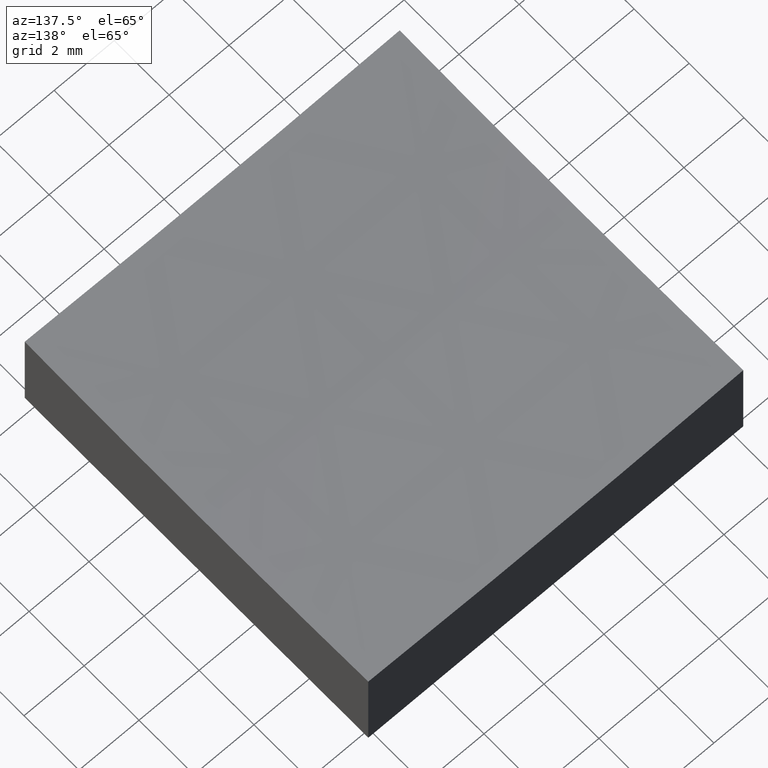
[diagram: clean part render]
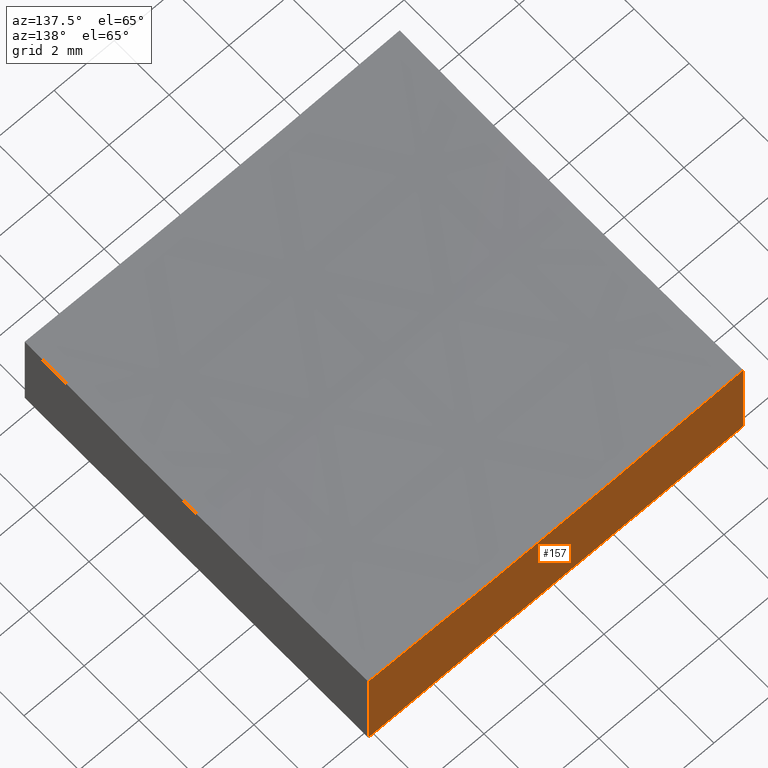
[diagram: same view with one face highlighted and labeled with its STEP entity id]
A machine part, auxiliary view. The second image highlights one B-rep face of the part: STEP entity #157.
In plain terms, the highlighted planar face has unit normal (0, 1, 0).
Its self-contained STEP definition (entity closure, byte-faithful):
#5 = VECTOR ( 'NONE', #144, 1000.000000000000000 ) ;
#14 = DIRECTION ( 'NONE',  ( 0.0000000000000000000, 1.000000000000000000, 0.0000000000000000000 ) ) ;
#32 = DIRECTION ( 'NONE',  ( 1.000000000000000000, 0.0000000000000000000, 0.0000000000000000000 ) ) ;
#35 = CARTESIAN_POINT ( 'NONE',  ( -6.250000000000000000, 6.250000000000000888, 0.0000000000000000000 ) ) ;
#38 = VECTOR ( 'NONE', #126, 1000.000000000000000 ) ;
#48 = AXIS2_PLACEMENT_3D ( 'NONE', #150, #14, #135 ) ;
#55 = EDGE_CURVE ( 'NONE', #147, #60, #106, .T. ) ;
#60 = VERTEX_POINT ( 'NONE', #155 ) ;
#62 = CARTESIAN_POINT ( 'NONE',  ( 1.873709602695450291E-14, 6.250000000000000888, 153.0000000000000000 ) ) ;
#65 = EDGE_CURVE ( 'NONE', #60, #166, #195, .T. ) ;
#84 = EDGE_LOOP ( 'NONE', ( #180, #164, #162, #134 ) ) ;
#85 = VERTEX_POINT ( 'NONE', #213 ) ;
#86 = EDGE_CURVE ( 'NONE', #147, #85, #178, .T. ) ;
#93 = LINE ( 'NONE', #35, #222 ) ;
#100 = CARTESIAN_POINT ( 'NONE',  ( -6.250000000000000000, 6.250000000000000888, 10.00000000000000000 ) ) ;
#106 = CIRCLE ( 'NONE', #229, 149.8697351035224585 ) ;
#111 = FACE_OUTER_BOUND ( 'NONE', #84, .T. ) ;
#115 = CARTESIAN_POINT ( 'NONE',  ( 6.250000000000000000, 6.250000000000000888, 3.260643116113293161 ) ) ;
#126 = DIRECTION ( 'NONE',  ( -0.0000000000000000000, -0.0000000000000000000, -1.000000000000000000 ) ) ;
#134 = ORIENTED_EDGE ( 'NONE', *, *, #65, .F. ) ;
#135 = DIRECTION ( 'NONE',  ( 0.0000000000000000000, -0.0000000000000000000, 1.000000000000000000 ) ) ;
#144 = DIRECTION ( 'NONE',  ( -0.0000000000000000000, -0.0000000000000000000, -1.000000000000000000 ) ) ;
#147 = VERTEX_POINT ( 'NONE', #115 ) ;
#150 = CARTESIAN_POINT ( 'NONE',  ( -6.250000000000000000, 6.250000000000000888, 10.00000000000000000 ) ) ;
#155 = CARTESIAN_POINT ( 'NONE',  ( -6.250000000000000000, 6.250000000000000888, 3.260643116113293161 ) ) ;
#157 = ADVANCED_FACE ( 'NONE', ( #111 ), #238, .T. ) ;
#159 = DIRECTION ( 'NONE',  ( 0.0000000000000000000, 1.000000000000000000, 0.0000000000000000000 ) ) ;
#162 = ORIENTED_EDGE ( 'NONE', *, *, #231, .F. ) ;
#164 = ORIENTED_EDGE ( 'NONE', *, *, #86, .T. ) ;
#166 = VERTEX_POINT ( 'NONE', #188 ) ;
#178 = LINE ( 'NONE', #232, #5 ) ;
#180 = ORIENTED_EDGE ( 'NONE', *, *, #55, .F. ) ;
#188 = CARTESIAN_POINT ( 'NONE',  ( -6.250000000000000000, 6.250000000000000888, 0.0000000000000000000 ) ) ;
#195 = LINE ( 'NONE', #100, #38 ) ;
#213 = CARTESIAN_POINT ( 'NONE',  ( 6.250000000000000000, 6.250000000000000888, 0.0000000000000000000 ) ) ;
#214 = DIRECTION ( 'NONE',  ( 0.0000000000000000000, 0.0000000000000000000, 1.000000000000000000 ) ) ;
#222 = VECTOR ( 'NONE', #32, 1000.000000000000000 ) ;
#229 = AXIS2_PLACEMENT_3D ( 'NONE', #62, #159, #214 ) ;
#231 = EDGE_CURVE ( 'NONE', #166, #85, #93, .T. ) ;
#232 = CARTESIAN_POINT ( 'NONE',  ( 6.250000000000000000, 6.250000000000000888, 10.00000000000000000 ) ) ;
#238 = PLANE ( 'NONE',  #48 ) ;